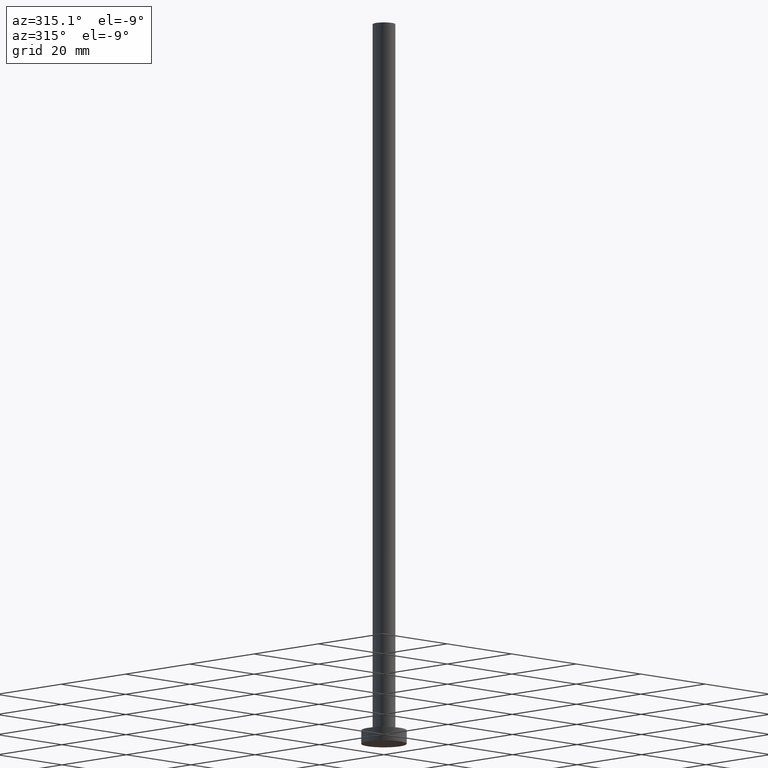
[diagram: clean part render]
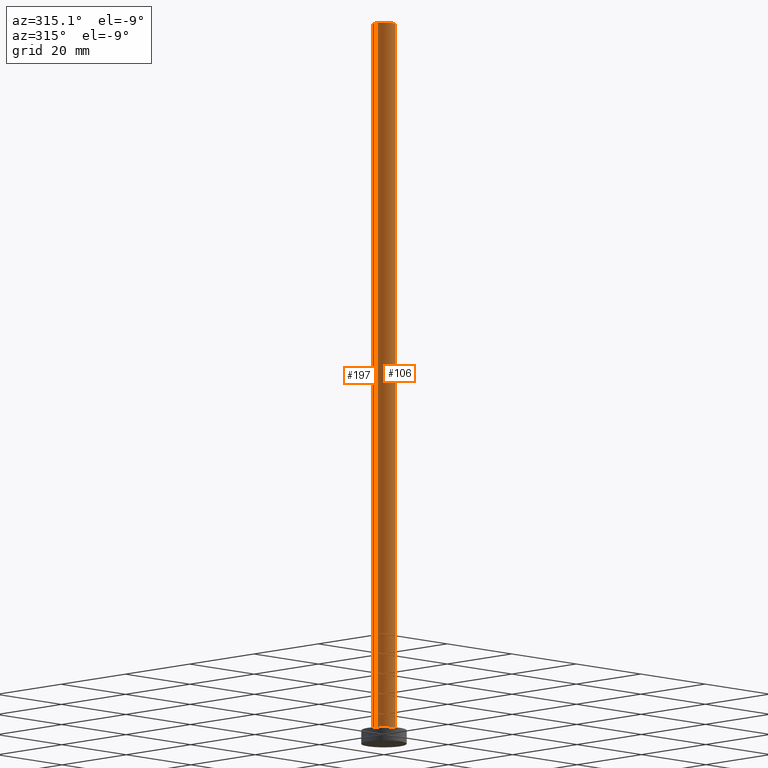
[diagram: same view with one multi-face feature highlighted, each face labeled with its STEP entity id]
A machine part, auxiliary view. The highlighted faces form ONE feature: a constant-radius fillet chain: 2 tangent blend faces with common blend radius 2.5 mm. The faces share edges in the B-rep.
Their STEP definitions:
[1] entity #106 (Cylinder):
#3 = CYLINDRICAL_SURFACE ( 'NONE', #151, 2.500000000000000000 ) ;
#4 = EDGE_CURVE ( 'NONE', #156, #182, #149, .T. ) ;
#6 = LINE ( 'NONE', #249, #166 ) ;
#29 = ORIENTED_EDGE ( 'NONE', *, *, #4, .F. ) ;
#32 = DIRECTION ( 'NONE',  ( 1.000000000000000000, 0.000000000000000000, 0.000000000000000000 ) ) ;
#40 = FACE_OUTER_BOUND ( 'NONE', #194, .T. ) ;
#41 = AXIS2_PLACEMENT_3D ( 'NONE', #121, #102, #245 ) ;
#44 = DIRECTION ( 'NONE',  ( -0.000000000000000000, -0.000000000000000000, -1.000000000000000000 ) ) ;
#78 = CIRCLE ( 'NONE', #41, 2.500000000000000000 ) ;
#79 = CIRCLE ( 'NONE', #98, 2.500000000000000000 ) ;
#81 = DIRECTION ( 'NONE',  ( -1.000000000000000000, 0.000000000000000000, 0.000000000000000000 ) ) ;
#91 = DIRECTION ( 'NONE',  ( 0.000000000000000000, 0.000000000000000000, 1.000000000000000000 ) ) ;
#95 = EDGE_CURVE ( 'NONE', #159, #182, #78, .T. ) ;
#97 = CARTESIAN_POINT ( 'NONE',  ( 0.000000000000000000, 0.000000000000000000, 160.0000000000000000 ) ) ;
#98 = AXIS2_PLACEMENT_3D ( 'NONE', #97, #91, #32 ) ;
#102 = DIRECTION ( 'NONE',  ( 0.000000000000000000, 0.000000000000000000, 1.000000000000000000 ) ) ;
#106 = ADVANCED_FACE ( 'NONE', ( #40 ), #3, .T. ) ;
#111 = CARTESIAN_POINT ( 'NONE',  ( 2.500000000000000000, 3.061616997868383141E-16, 160.0000000000000000 ) ) ;
#121 = CARTESIAN_POINT ( 'NONE',  ( 0.000000000000000000, 0.000000000000000000, 3.000000000000000000 ) ) ;
#124 = DIRECTION ( 'NONE',  ( -0.000000000000000000, -0.000000000000000000, -1.000000000000000000 ) ) ;
#149 = LINE ( 'NONE', #185, #189 ) ;
#151 = AXIS2_PLACEMENT_3D ( 'NONE', #180, #124, #81 ) ;
#154 = EDGE_CURVE ( 'NONE', #221, #159, #6, .T. ) ;
#156 = VERTEX_POINT ( 'NONE', #111 ) ;
#159 = VERTEX_POINT ( 'NONE', #188 ) ;
#166 = VECTOR ( 'NONE', #191, 1000.000000000000000 ) ;
#171 = CARTESIAN_POINT ( 'NONE',  ( 2.500000000000000000, 3.061616997868383141E-16, 3.000000000000000000 ) ) ;
#174 = ORIENTED_EDGE ( 'NONE', *, *, #95, .T. ) ;
#180 = CARTESIAN_POINT ( 'NONE',  ( 0.000000000000000000, 0.000000000000000000, 160.0000000000000000 ) ) ;
#182 = VERTEX_POINT ( 'NONE', #171 ) ;
#185 = CARTESIAN_POINT ( 'NONE',  ( 2.500000000000000000, 3.061616997868383141E-16, 160.0000000000000000 ) ) ;
#188 = CARTESIAN_POINT ( 'NONE',  ( -2.500000000000000000, 0.000000000000000000, 3.000000000000000000 ) ) ;
#189 = VECTOR ( 'NONE', #44, 1000.000000000000000 ) ;
#191 = DIRECTION ( 'NONE',  ( -0.000000000000000000, -0.000000000000000000, -1.000000000000000000 ) ) ;
#194 = EDGE_LOOP ( 'NONE', ( #29, #216, #208, #174 ) ) ;
#208 = ORIENTED_EDGE ( 'NONE', *, *, #154, .T. ) ;
#213 = CARTESIAN_POINT ( 'NONE',  ( -2.500000000000000000, 0.000000000000000000, 160.0000000000000000 ) ) ;
#216 = ORIENTED_EDGE ( 'NONE', *, *, #254, .F. ) ;
#221 = VERTEX_POINT ( 'NONE', #213 ) ;
#245 = DIRECTION ( 'NONE',  ( 1.000000000000000000, 0.000000000000000000, 0.000000000000000000 ) ) ;
#249 = CARTESIAN_POINT ( 'NONE',  ( -2.500000000000000000, 0.000000000000000000, 160.0000000000000000 ) ) ;
#254 = EDGE_CURVE ( 'NONE', #221, #156, #79, .T. ) ;
[2] entity #197 (Cylinder):
#1 = AXIS2_PLACEMENT_3D ( 'NONE', #131, #68, #170 ) ;
#4 = EDGE_CURVE ( 'NONE', #156, #182, #149, .T. ) ;
#6 = LINE ( 'NONE', #249, #166 ) ;
#15 = ORIENTED_EDGE ( 'NONE', *, *, #154, .F. ) ;
#19 = ORIENTED_EDGE ( 'NONE', *, *, #163, .T. ) ;
#25 = AXIS2_PLACEMENT_3D ( 'NONE', #246, #89, #64 ) ;
#37 = EDGE_LOOP ( 'NONE', ( #66, #51, #19, #15 ) ) ;
#44 = DIRECTION ( 'NONE',  ( -0.000000000000000000, -0.000000000000000000, -1.000000000000000000 ) ) ;
#49 = CIRCLE ( 'NONE', #1, 2.500000000000000000 ) ;
#50 = DIRECTION ( 'NONE',  ( 1.000000000000000000, 0.000000000000000000, 0.000000000000000000 ) ) ;
#51 = ORIENTED_EDGE ( 'NONE', *, *, #4, .T. ) ;
#64 = DIRECTION ( 'NONE',  ( -1.000000000000000000, 0.000000000000000000, 0.000000000000000000 ) ) ;
#66 = ORIENTED_EDGE ( 'NONE', *, *, #192, .F. ) ;
#68 = DIRECTION ( 'NONE',  ( 0.000000000000000000, 0.000000000000000000, 1.000000000000000000 ) ) ;
#89 = DIRECTION ( 'NONE',  ( -0.000000000000000000, -0.000000000000000000, -1.000000000000000000 ) ) ;
#111 = CARTESIAN_POINT ( 'NONE',  ( 2.500000000000000000, 3.061616997868383141E-16, 160.0000000000000000 ) ) ;
#119 = CIRCLE ( 'NONE', #160, 2.500000000000000000 ) ;
#131 = CARTESIAN_POINT ( 'NONE',  ( 0.000000000000000000, 0.000000000000000000, 3.000000000000000000 ) ) ;
#149 = LINE ( 'NONE', #185, #189 ) ;
#153 = DIRECTION ( 'NONE',  ( 0.000000000000000000, 0.000000000000000000, 1.000000000000000000 ) ) ;
#154 = EDGE_CURVE ( 'NONE', #221, #159, #6, .T. ) ;
#156 = VERTEX_POINT ( 'NONE', #111 ) ;
#159 = VERTEX_POINT ( 'NONE', #188 ) ;
#160 = AXIS2_PLACEMENT_3D ( 'NONE', #169, #153, #50 ) ;
#163 = EDGE_CURVE ( 'NONE', #182, #159, #49, .T. ) ;
#166 = VECTOR ( 'NONE', #191, 1000.000000000000000 ) ;
#169 = CARTESIAN_POINT ( 'NONE',  ( 0.000000000000000000, 0.000000000000000000, 160.0000000000000000 ) ) ;
#170 = DIRECTION ( 'NONE',  ( 1.000000000000000000, 0.000000000000000000, 0.000000000000000000 ) ) ;
#171 = CARTESIAN_POINT ( 'NONE',  ( 2.500000000000000000, 3.061616997868383141E-16, 3.000000000000000000 ) ) ;
#182 = VERTEX_POINT ( 'NONE', #171 ) ;
#185 = CARTESIAN_POINT ( 'NONE',  ( 2.500000000000000000, 3.061616997868383141E-16, 160.0000000000000000 ) ) ;
#188 = CARTESIAN_POINT ( 'NONE',  ( -2.500000000000000000, 0.000000000000000000, 3.000000000000000000 ) ) ;
#189 = VECTOR ( 'NONE', #44, 1000.000000000000000 ) ;
#191 = DIRECTION ( 'NONE',  ( -0.000000000000000000, -0.000000000000000000, -1.000000000000000000 ) ) ;
#192 = EDGE_CURVE ( 'NONE', #156, #221, #119, .T. ) ;
#197 = ADVANCED_FACE ( 'NONE', ( #218 ), #220, .T. ) ;
#213 = CARTESIAN_POINT ( 'NONE',  ( -2.500000000000000000, 0.000000000000000000, 160.0000000000000000 ) ) ;
#218 = FACE_OUTER_BOUND ( 'NONE', #37, .T. ) ;
#220 = CYLINDRICAL_SURFACE ( 'NONE', #25, 2.500000000000000000 ) ;
#221 = VERTEX_POINT ( 'NONE', #213 ) ;
#246 = CARTESIAN_POINT ( 'NONE',  ( 0.000000000000000000, 0.000000000000000000, 160.0000000000000000 ) ) ;
#249 = CARTESIAN_POINT ( 'NONE',  ( -2.500000000000000000, 0.000000000000000000, 160.0000000000000000 ) ) ;